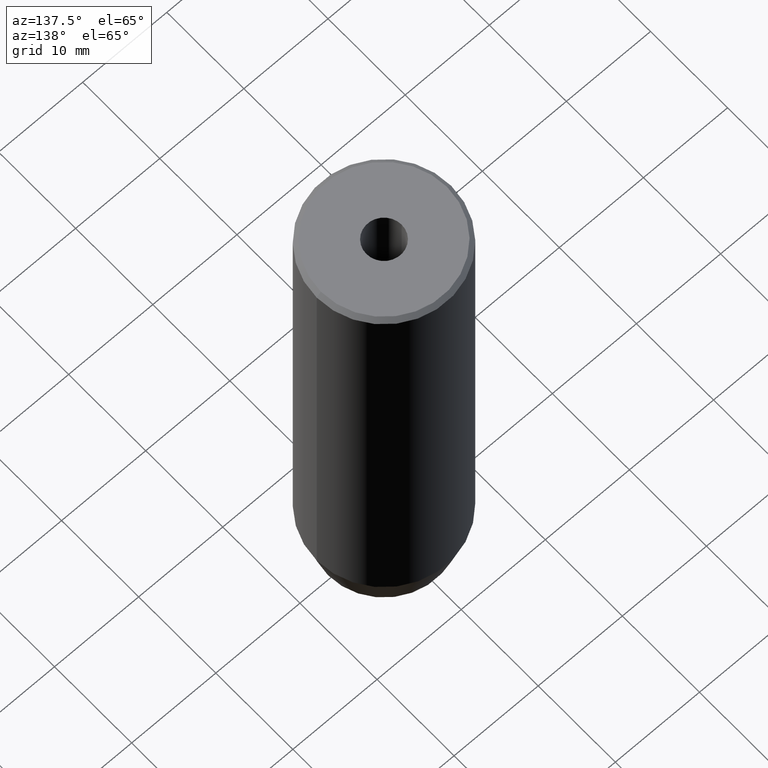
[diagram: clean part render]
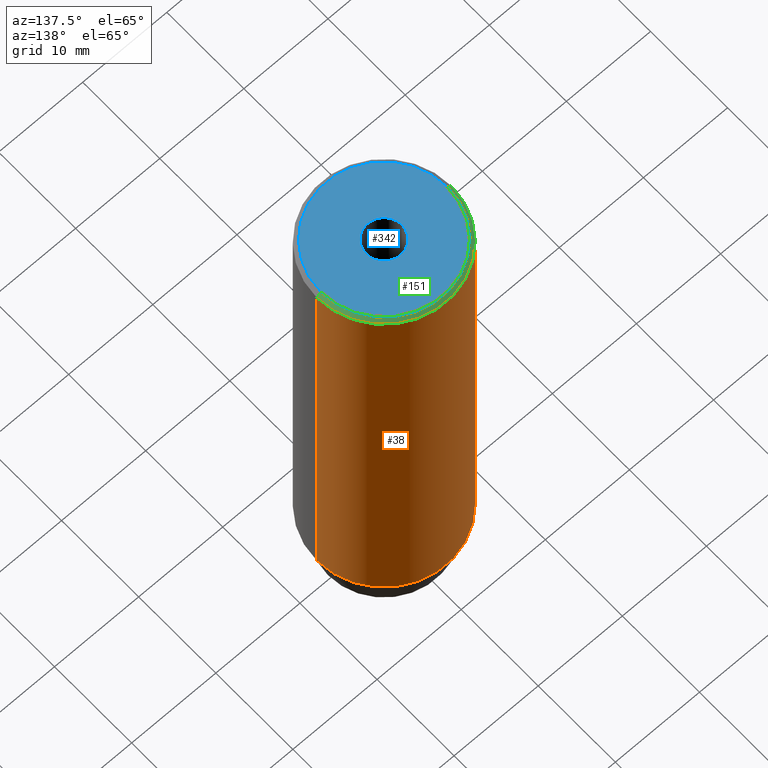
[diagram: same view with three faces highlighted in distinct colors, each labeled with its STEP entity id]
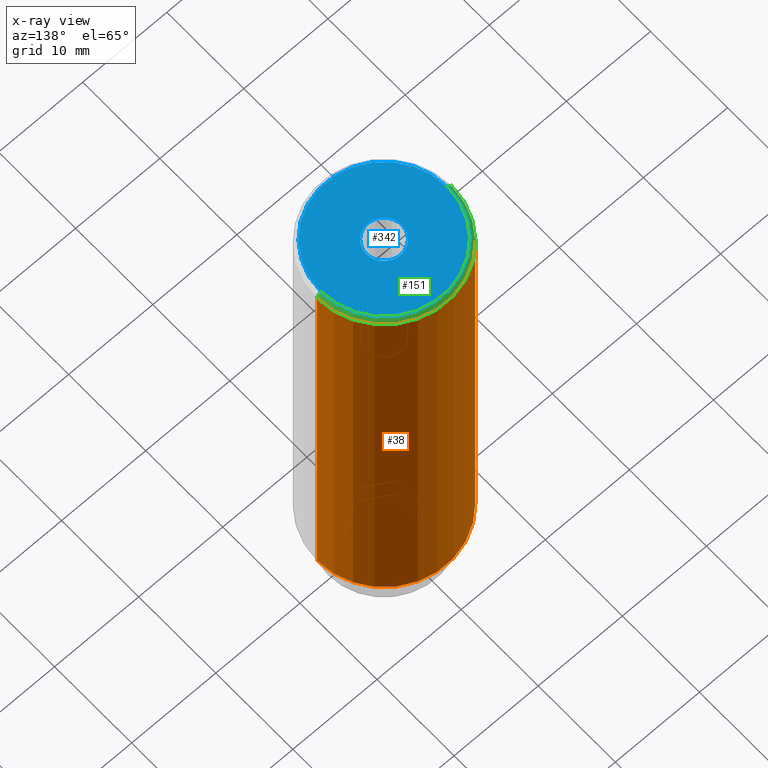
[diagram: x-ray of the same camera — body ghosted, the three highlighted faces saturated]
A machine part, auxiliary view with three faces highlighted in distinct colors.
The next image is the same camera in x-ray (body ghosted, the three faces saturated) — at least one of them is partly hidden behind the body in this view.
Their STEP definitions:

[orange] entity #38 — the highlighted cylindrical surface (partial cylindrical patch) has radius 8 mm, axis along (-0, -0, 1).
#32 = CIRCLE ( 'NONE', #300, 8.000000000000000000 ) ;
#38 = ADVANCED_FACE ( 'NONE', ( #391 ), #166, .T. ) ;
#55 = CARTESIAN_POINT ( 'NONE',  ( 0.000000000000000000, 0.000000000000000000, -55.00000000000000000 ) ) ;
#56 = ORIENTED_EDGE ( 'NONE', *, *, #215, .T. ) ;
#58 = EDGE_CURVE ( 'NONE', #139, #264, #296, .T. ) ;
#63 = VERTEX_POINT ( 'NONE', #337 ) ;
#73 = DIRECTION ( 'NONE',  ( 1.000000000000000000, 0.000000000000000000, 0.000000000000000000 ) ) ;
#86 = CARTESIAN_POINT ( 'NONE',  ( -8.000000000000000000, 9.797174393178825657E-16, 0.000000000000000000 ) ) ;
#90 = EDGE_CURVE ( 'NONE', #63, #264, #32, .T. ) ;
#139 = VERTEX_POINT ( 'NONE', #397 ) ;
#166 = CYLINDRICAL_SURFACE ( 'NONE', #548, 8.000000000000000000 ) ;
#168 = DIRECTION ( 'NONE',  ( 1.000000000000000000, 0.000000000000000000, 0.000000000000000000 ) ) ;
#193 = ORIENTED_EDGE ( 'NONE', *, *, #90, .T. ) ;
#204 = CARTESIAN_POINT ( 'NONE',  ( 0.000000000000000000, 0.000000000000000000, 0.000000000000000000 ) ) ;
#215 = EDGE_CURVE ( 'NONE', #139, #411, #413, .T. ) ;
#228 = CARTESIAN_POINT ( 'NONE',  ( 0.000000000000000000, 0.000000000000000000, -0.4999999999999866773 ) ) ;
#234 = EDGE_LOOP ( 'NONE', ( #56, #536, #193, #566 ) ) ;
#246 = DIRECTION ( 'NONE',  ( -0.000000000000000000, -0.000000000000000000, 1.000000000000000000 ) ) ;
#251 = CARTESIAN_POINT ( 'NONE',  ( -8.000000000000000000, 9.797174393178825657E-16, -55.00000000000000000 ) ) ;
#264 = VERTEX_POINT ( 'NONE', #438 ) ;
#296 = LINE ( 'NONE', #466, #443 ) ;
#300 = AXIS2_PLACEMENT_3D ( 'NONE', #228, #308, #168 ) ;
#308 = DIRECTION ( 'NONE',  ( 0.000000000000000000, 0.000000000000000000, -1.000000000000000000 ) ) ;
#317 = LINE ( 'NONE', #86, #319 ) ;
#319 = VECTOR ( 'NONE', #409, 1000.000000000000000 ) ;
#337 = CARTESIAN_POINT ( 'NONE',  ( -8.000000000000000000, 9.797174393178825657E-16, -0.4999999999999866773 ) ) ;
#344 = AXIS2_PLACEMENT_3D ( 'NONE', #55, #419, #73 ) ;
#346 = DIRECTION ( 'NONE',  ( 1.000000000000000000, 0.000000000000000000, 0.000000000000000000 ) ) ;
#391 = FACE_OUTER_BOUND ( 'NONE', #234, .T. ) ;
#397 = CARTESIAN_POINT ( 'NONE',  ( 8.000000000000000000, 0.000000000000000000, -55.00000000000000000 ) ) ;
#409 = DIRECTION ( 'NONE',  ( -0.000000000000000000, -0.000000000000000000, 1.000000000000000000 ) ) ;
#411 = VERTEX_POINT ( 'NONE', #251 ) ;
#413 = CIRCLE ( 'NONE', #344, 8.000000000000000000 ) ;
#419 = DIRECTION ( 'NONE',  ( -0.000000000000000000, -0.000000000000000000, 1.000000000000000000 ) ) ;
#424 = DIRECTION ( 'NONE',  ( -0.000000000000000000, -0.000000000000000000, 1.000000000000000000 ) ) ;
#438 = CARTESIAN_POINT ( 'NONE',  ( 8.000000000000000000, 0.000000000000000000, -0.4999999999999866773 ) ) ;
#443 = VECTOR ( 'NONE', #424, 1000.000000000000000 ) ;
#466 = CARTESIAN_POINT ( 'NONE',  ( 8.000000000000000000, 0.000000000000000000, 0.000000000000000000 ) ) ;
#502 = EDGE_CURVE ( 'NONE', #411, #63, #317, .T. ) ;
#536 = ORIENTED_EDGE ( 'NONE', *, *, #502, .T. ) ;
#548 = AXIS2_PLACEMENT_3D ( 'NONE', #204, #246, #346 ) ;
#566 = ORIENTED_EDGE ( 'NONE', *, *, #58, .F. ) ;

[blue] entity #342 — the highlighted planar face has unit normal (0, -0, 1).
#30 = VERTEX_POINT ( 'NONE', #569 ) ;
#67 = EDGE_CURVE ( 'NONE', #316, #487, #81, .T. ) ;
#74 = CIRCLE ( 'NONE', #465, 2.099999999999998757 ) ;
#81 = CIRCLE ( 'NONE', #194, 2.099999999999998757 ) ;
#92 = FACE_OUTER_BOUND ( 'NONE', #584, .T. ) ;
#98 = CARTESIAN_POINT ( 'NONE',  ( -7.500000000000007105, 0.000000000000000000, 0.000000000000000000 ) ) ;
#106 = DIRECTION ( 'NONE',  ( -0.000000000000000000, -0.000000000000000000, 1.000000000000000000 ) ) ;
#163 = DIRECTION ( 'NONE',  ( 1.000000000000000000, 0.000000000000000000, 0.000000000000000000 ) ) ;
#175 = ORIENTED_EDGE ( 'NONE', *, *, #522, .T. ) ;
#184 = AXIS2_PLACEMENT_3D ( 'NONE', #567, #390, #163 ) ;
#186 = DIRECTION ( 'NONE',  ( 0.000000000000000000, -0.000000000000000000, 1.000000000000000000 ) ) ;
#194 = AXIS2_PLACEMENT_3D ( 'NONE', #250, #514, #428 ) ;
#237 = CARTESIAN_POINT ( 'NONE',  ( -2.099999999999998757, 2.571758278209440478E-16, -1.990051048614449116E-16 ) ) ;
#244 = CIRCLE ( 'NONE', #572, 7.500000000000007105 ) ;
#250 = CARTESIAN_POINT ( 'NONE',  ( 0.000000000000000000, 0.000000000000000000, -1.990051048614449116E-16 ) ) ;
#274 = CARTESIAN_POINT ( 'NONE',  ( 0.000000000000000000, 0.000000000000000000, 0.000000000000000000 ) ) ;
#289 = DIRECTION ( 'NONE',  ( 1.000000000000000000, 0.000000000000000000, 0.000000000000000000 ) ) ;
#311 = EDGE_CURVE ( 'NONE', #30, #580, #326, .T. ) ;
#316 = VERTEX_POINT ( 'NONE', #345 ) ;
#326 = CIRCLE ( 'NONE', #184, 7.500000000000007105 ) ;
#342 = ADVANCED_FACE ( 'NONE', ( #363, #92 ), #493, .T. ) ;
#345 = CARTESIAN_POINT ( 'NONE',  ( 2.099999999999998757, 0.000000000000000000, -1.990051048614449116E-16 ) ) ;
#363 = FACE_BOUND ( 'NONE', #450, .T. ) ;
#367 = DIRECTION ( 'NONE',  ( 1.000000000000000000, 0.000000000000000000, 0.000000000000000000 ) ) ;
#375 = AXIS2_PLACEMENT_3D ( 'NONE', #274, #186, #367 ) ;
#390 = DIRECTION ( 'NONE',  ( -0.000000000000000000, -0.000000000000000000, 1.000000000000000000 ) ) ;
#408 = ORIENTED_EDGE ( 'NONE', *, *, #311, .T. ) ;
#428 = DIRECTION ( 'NONE',  ( 1.000000000000000000, 0.000000000000000000, 0.000000000000000000 ) ) ;
#435 = EDGE_CURVE ( 'NONE', #487, #316, #74, .T. ) ;
#442 = DIRECTION ( 'NONE',  ( -0.000000000000000000, -0.000000000000000000, 1.000000000000000000 ) ) ;
#450 = EDGE_LOOP ( 'NONE', ( #496, #528 ) ) ;
#465 = AXIS2_PLACEMENT_3D ( 'NONE', #503, #106, #289 ) ;
#487 = VERTEX_POINT ( 'NONE', #237 ) ;
#492 = DIRECTION ( 'NONE',  ( 1.000000000000000000, 0.000000000000000000, 0.000000000000000000 ) ) ;
#493 = PLANE ( 'NONE',  #375 ) ;
#496 = ORIENTED_EDGE ( 'NONE', *, *, #67, .F. ) ;
#503 = CARTESIAN_POINT ( 'NONE',  ( 0.000000000000000000, 0.000000000000000000, -1.990051048614449116E-16 ) ) ;
#514 = DIRECTION ( 'NONE',  ( -0.000000000000000000, -0.000000000000000000, 1.000000000000000000 ) ) ;
#522 = EDGE_CURVE ( 'NONE', #580, #30, #244, .T. ) ;
#528 = ORIENTED_EDGE ( 'NONE', *, *, #435, .F. ) ;
#567 = CARTESIAN_POINT ( 'NONE',  ( 0.000000000000000000, 0.000000000000000000, 0.000000000000000000 ) ) ;
#569 = CARTESIAN_POINT ( 'NONE',  ( 7.500000000000007105, 9.491012693391991731E-16, 0.000000000000000000 ) ) ;
#572 = AXIS2_PLACEMENT_3D ( 'NONE', #585, #442, #492 ) ;
#580 = VERTEX_POINT ( 'NONE', #98 ) ;
#584 = EDGE_LOOP ( 'NONE', ( #175, #408 ) ) ;
#585 = CARTESIAN_POINT ( 'NONE',  ( 0.000000000000000000, 0.000000000000000000, 0.000000000000000000 ) ) ;

[green] entity #151 — the highlighted conical surface has half-angle 45 deg.
#3 = AXIS2_PLACEMENT_3D ( 'NONE', #354, #356, #173 ) ;
#30 = VERTEX_POINT ( 'NONE', #569 ) ;
#32 = CIRCLE ( 'NONE', #300, 8.000000000000000000 ) ;
#50 = VECTOR ( 'NONE', #182, 1000.000000000000000 ) ;
#63 = VERTEX_POINT ( 'NONE', #337 ) ;
#69 = DIRECTION ( 'NONE',  ( 0.7071067811865524577, 8.659560562354993255E-17, -0.7071067811865426878 ) ) ;
#85 = ORIENTED_EDGE ( 'NONE', *, *, #311, .F. ) ;
#90 = EDGE_CURVE ( 'NONE', #63, #264, #32, .T. ) ;
#98 = CARTESIAN_POINT ( 'NONE',  ( -7.500000000000007105, 0.000000000000000000, 0.000000000000000000 ) ) ;
#141 = ORIENTED_EDGE ( 'NONE', *, *, #90, .F. ) ;
#151 = ADVANCED_FACE ( 'NONE', ( #576 ), #291, .T. ) ;
#163 = DIRECTION ( 'NONE',  ( 1.000000000000000000, 0.000000000000000000, 0.000000000000000000 ) ) ;
#168 = DIRECTION ( 'NONE',  ( 1.000000000000000000, 0.000000000000000000, 0.000000000000000000 ) ) ;
#173 = DIRECTION ( 'NONE',  ( -1.000000000000000000, 0.000000000000000000, 0.000000000000000000 ) ) ;
#182 = DIRECTION ( 'NONE',  ( -0.7071067811865524577, 0.000000000000000000, -0.7071067811865426878 ) ) ;
#184 = AXIS2_PLACEMENT_3D ( 'NONE', #567, #390, #163 ) ;
#228 = CARTESIAN_POINT ( 'NONE',  ( 0.000000000000000000, 0.000000000000000000, -0.4999999999999866773 ) ) ;
#254 = LINE ( 'NONE', #516, #445 ) ;
#264 = VERTEX_POINT ( 'NONE', #438 ) ;
#291 = CONICAL_SURFACE ( 'NONE', #3, 7.500000000000007105, 0.7853981633974552734 ) ;
#300 = AXIS2_PLACEMENT_3D ( 'NONE', #228, #308, #168 ) ;
#308 = DIRECTION ( 'NONE',  ( 0.000000000000000000, 0.000000000000000000, -1.000000000000000000 ) ) ;
#311 = EDGE_CURVE ( 'NONE', #30, #580, #326, .T. ) ;
#326 = CIRCLE ( 'NONE', #184, 7.500000000000007105 ) ;
#335 = EDGE_CURVE ( 'NONE', #580, #63, #490, .T. ) ;
#337 = CARTESIAN_POINT ( 'NONE',  ( -8.000000000000000000, 9.797174393178825657E-16, -0.4999999999999866773 ) ) ;
#354 = CARTESIAN_POINT ( 'NONE',  ( 0.000000000000000000, 0.000000000000000000, 0.000000000000000000 ) ) ;
#356 = DIRECTION ( 'NONE',  ( 0.000000000000000000, 0.000000000000000000, -1.000000000000000000 ) ) ;
#377 = EDGE_LOOP ( 'NONE', ( #85, #380, #141, #478 ) ) ;
#380 = ORIENTED_EDGE ( 'NONE', *, *, #407, .T. ) ;
#390 = DIRECTION ( 'NONE',  ( -0.000000000000000000, -0.000000000000000000, 1.000000000000000000 ) ) ;
#407 = EDGE_CURVE ( 'NONE', #30, #264, #254, .T. ) ;
#410 = CARTESIAN_POINT ( 'NONE',  ( -7.500000000000007105, 0.000000000000000000, 0.000000000000000000 ) ) ;
#438 = CARTESIAN_POINT ( 'NONE',  ( 8.000000000000000000, 0.000000000000000000, -0.4999999999999866773 ) ) ;
#445 = VECTOR ( 'NONE', #69, 1000.000000000000000 ) ;
#478 = ORIENTED_EDGE ( 'NONE', *, *, #335, .F. ) ;
#490 = LINE ( 'NONE', #410, #50 ) ;
#516 = CARTESIAN_POINT ( 'NONE',  ( 7.500000000000007105, 9.184850993605157805E-16, 0.000000000000000000 ) ) ;
#567 = CARTESIAN_POINT ( 'NONE',  ( 0.000000000000000000, 0.000000000000000000, 0.000000000000000000 ) ) ;
#569 = CARTESIAN_POINT ( 'NONE',  ( 7.500000000000007105, 9.491012693391991731E-16, 0.000000000000000000 ) ) ;
#576 = FACE_OUTER_BOUND ( 'NONE', #377, .T. ) ;
#580 = VERTEX_POINT ( 'NONE', #98 ) ;